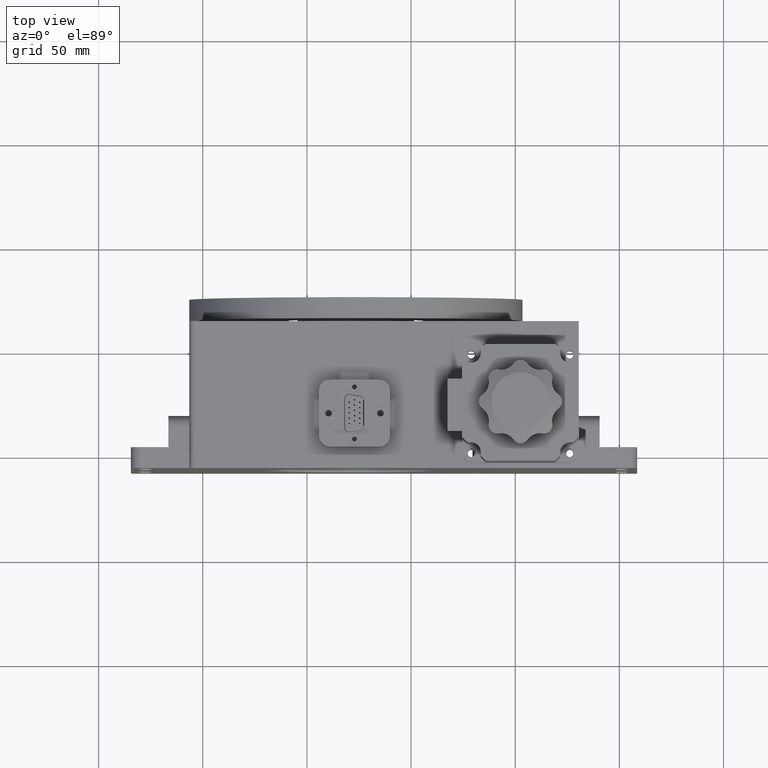
[diagram: clean part render]
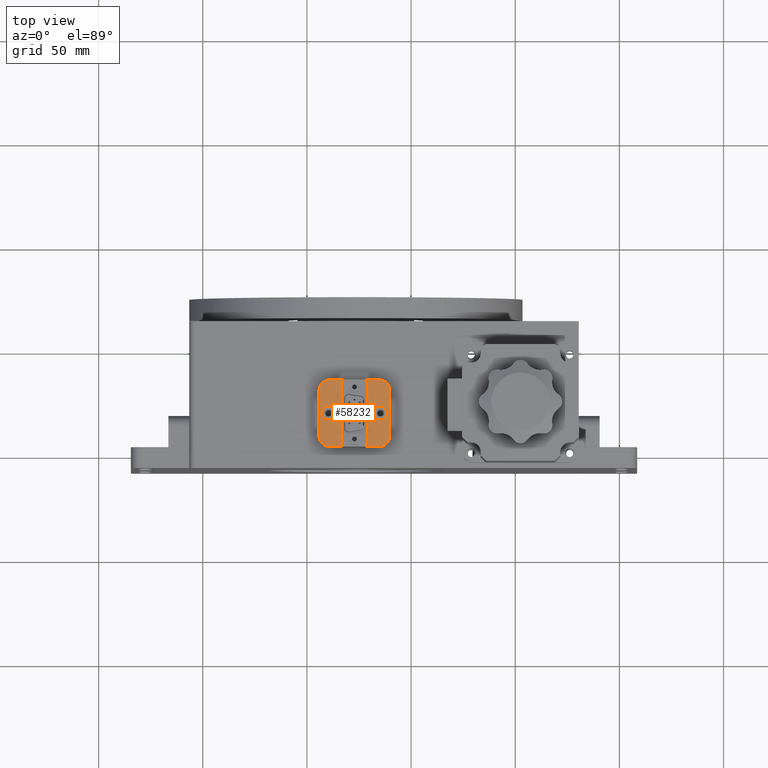
[diagram: same view with one face highlighted and labeled with its STEP entity id]
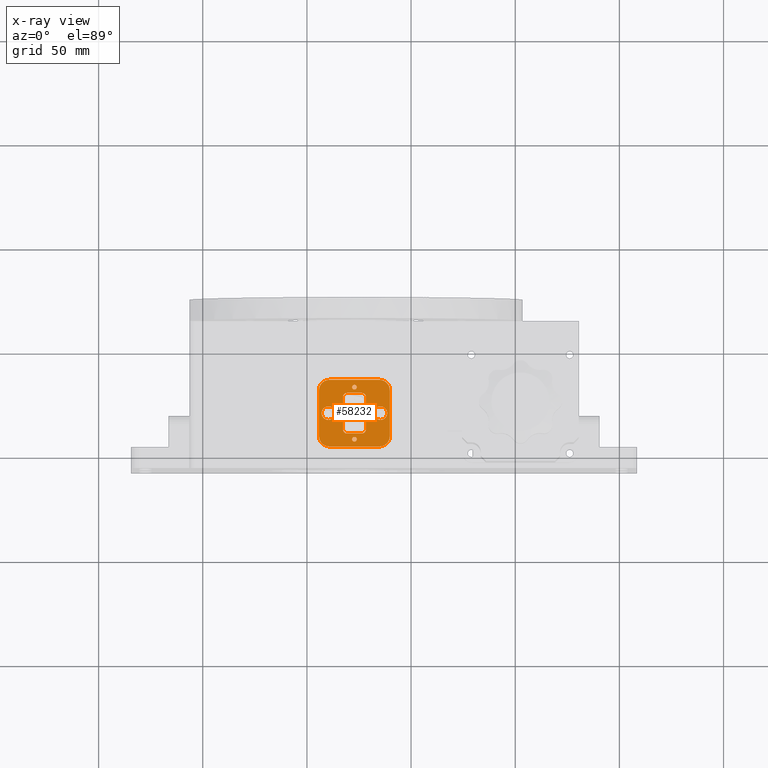
[diagram: x-ray of the same camera — body ghosted, the highlighted face saturated]
A machine part, top view. The second image highlights one B-rep face of the part: STEP entity #58232.
The next image is the same camera in x-ray: the body ghosted, the highlighted face saturated — about 0% of this face is hidden behind the body in this view.
In plain terms, the highlighted planar face has unit normal (0, 0, 1).
Its self-contained STEP definition (entity closure, byte-faithful):
#401 = EDGE_CURVE ( 'NONE', #41298, #81257, #11956, .T. ) ;
#722 = CARTESIAN_POINT ( 'NONE',  ( 176.2999999999999500, 26.24999999999998200, 95.00000000000000000 ) ) ;
#1370 = AXIS2_PLACEMENT_3D ( 'NONE', #97990, #48661, #106285 ) ;
#1407 = DIRECTION ( 'NONE',  ( 1.110223024625156300E-016, -1.000000000000000000, 1.979074067922857200E-017 ) ) ;
#2116 = AXIS2_PLACEMENT_3D ( 'NONE', #39461, #97050, #47736 ) ;
#2663 = CARTESIAN_POINT ( 'NONE',  ( 169.2999999999999500, 10.74999999999998000, 95.00000000000000000 ) ) ;
#2784 = DIRECTION ( 'NONE',  ( -1.163031447553721600E-017, -1.979074067922857800E-017, -1.000000000000000000 ) ) ;
#3432 = CIRCLE ( 'NONE', #6556, 5.000000000000004400 ) ;
#4756 = DIRECTION ( 'NONE',  ( 1.000000000000000000, 0.0000000000000000000, 0.0000000000000000000 ) ) ;
#5069 = DIRECTION ( 'NONE',  ( 1.000000000000000000, 0.0000000000000000000, 0.0000000000000000000 ) ) ;
#5075 = ORIENTED_EDGE ( 'NONE', *, *, #48262, .F. ) ;
#5930 = VERTEX_POINT ( 'NONE', #68591 ) ;
#6556 = AXIS2_PLACEMENT_3D ( 'NONE', #44109, #101680, #52350 ) ;
#6705 = CIRCLE ( 'NONE', #65721, 3.250000000000002700 ) ;
#7491 = CARTESIAN_POINT ( 'NONE',  ( 176.2999999999999500, 28.24999999999998200, 95.00000000000000000 ) ) ;
#8966 = DIRECTION ( 'NONE',  ( 1.000000000000000000, 0.0000000000000000000, 0.0000000000000000000 ) ) ;
#9271 = ORIENTED_EDGE ( 'NONE', *, *, #10303, .T. ) ;
#9697 = EDGE_LOOP ( 'NONE', ( #13674, #14201 ) ) ;
#9873 = CARTESIAN_POINT ( 'NONE',  ( 189.7999999999999500, 29.49999999999998600, 95.00000000000000000 ) ) ;
#10303 = EDGE_CURVE ( 'NONE', #22187, #84793, #23425, .T. ) ;
#10437 = CARTESIAN_POINT ( 'NONE',  ( 155.7999999999999300, 7.499999999999980500, 95.00000000000000000 ) ) ;
#10888 = DIRECTION ( 'NONE',  ( -1.000000000000000000, 0.0000000000000000000, 0.0000000000000000000 ) ) ;
#11956 = CIRCLE ( 'NONE', #99701, 3.250000000000002700 ) ;
#13120 = EDGE_CURVE ( 'NONE', #42320, #47462, #57618, .T. ) ;
#13623 = DIRECTION ( 'NONE',  ( 1.163031447553721600E-017, 1.979074067922857800E-017, 1.000000000000000000 ) ) ;
#13674 = ORIENTED_EDGE ( 'NONE', *, *, #84899, .F. ) ;
#14201 = ORIENTED_EDGE ( 'NONE', *, *, #105463, .F. ) ;
#14415 = AXIS2_PLACEMENT_3D ( 'NONE', #30085, #87753, #38383 ) ;
#15762 = LINE ( 'NONE', #29673, #95625 ) ;
#16251 = VERTEX_POINT ( 'NONE', #102728 ) ;
#16459 = ORIENTED_EDGE ( 'NONE', *, *, #13120, .F. ) ;
#19341 = EDGE_CURVE ( 'NONE', #81257, #41298, #80140, .T. ) ;
#21327 = LINE ( 'NONE', #7491, #62565 ) ;
#21628 = CARTESIAN_POINT ( 'NONE',  ( 185.2999999999999500, 18.49999999999998200, 95.00000000000000000 ) ) ;
#21630 = CARTESIAN_POINT ( 'NONE',  ( 169.2999999999999500, 28.24999999999998200, 95.00000000000000000 ) ) ;
#21930 = CARTESIAN_POINT ( 'NONE',  ( 160.2999999999999500, 18.49999999999998200, 95.00000000000000000 ) ) ;
#22187 = VERTEX_POINT ( 'NONE', #74598 ) ;
#22322 = CARTESIAN_POINT ( 'NONE',  ( 172.7999999999999500, 5.999999999999977800, 95.00000000000000000 ) ) ;
#22695 = CIRCLE ( 'NONE', #75023, 2.000000000000001800 ) ;
#23274 = AXIS2_PLACEMENT_3D ( 'NONE', #103397, #54041, #4756 ) ;
#23425 = LINE ( 'NONE', #95240, #64625 ) ;
#23489 = EDGE_CURVE ( 'NONE', #56537, #67638, #71592, .T. ) ;
#23936 = VERTEX_POINT ( 'NONE', #61471 ) ;
#24463 = DIRECTION ( 'NONE',  ( 1.000000000000000000, -1.279123011582182100E-066, -1.163031447553721700E-017 ) ) ;
#24992 = CARTESIAN_POINT ( 'NONE',  ( 178.2999999999999500, 26.24999999999998200, 95.00000000000000000 ) ) ;
#25199 = CIRCLE ( 'NONE', #48083, 5.000000000000004400 ) ;
#25575 = CARTESIAN_POINT ( 'NONE',  ( 185.2999999999999500, 18.49999999999998200, 95.00000000000000000 ) ) ;
#26602 = VECTOR ( 'NONE', #101057, 1000.000000000000000 ) ;
#27470 = VECTOR ( 'NONE', #1407, 1000.000000000000000 ) ;
#27724 = ORIENTED_EDGE ( 'NONE', *, *, #105138, .F. ) ;
#28409 = VERTEX_POINT ( 'NONE', #94541 ) ;
#29388 = FACE_BOUND ( 'NONE', #29890, .T. ) ;
#29673 = CARTESIAN_POINT ( 'NONE',  ( 189.7999999999999500, 29.49999999999998600, 95.00000000000000000 ) ) ;
#29890 = EDGE_LOOP ( 'NONE', ( #27724, #45446 ) ) ;
#29897 = DIRECTION ( 'NONE',  ( 1.000000000000000000, 0.0000000000000000000, 0.0000000000000000000 ) ) ;
#30085 = CARTESIAN_POINT ( 'NONE',  ( 184.7999999999999500, 29.49999999999998600, 95.00000000000000000 ) ) ;
#30199 = DIRECTION ( 'NONE',  ( 1.000000000000000000, 0.0000000000000000000, 0.0000000000000000000 ) ) ;
#30589 = DIRECTION ( 'NONE',  ( 1.000000000000000000, 0.0000000000000000000, 0.0000000000000000000 ) ) ;
#30597 = CIRCLE ( 'NONE', #43795, 1.130300000000000700 ) ;
#31428 = CARTESIAN_POINT ( 'NONE',  ( 169.2999999999999500, 8.749999999999980500, 95.00000000000000000 ) ) ;
#32108 = AXIS2_PLACEMENT_3D ( 'NONE', #722, #58298, #8966 ) ;
#32227 = CARTESIAN_POINT ( 'NONE',  ( 184.7999999999999500, 34.49999999999998600, 95.00000000000000000 ) ) ;
#32808 = ORIENTED_EDGE ( 'NONE', *, *, #89044, .T. ) ;
#32856 = LINE ( 'NONE', #68121, #93396 ) ;
#33129 = EDGE_LOOP ( 'NONE', ( #67091, #75498, #54999, #5075, #71817, #101205, #91543, #71435 ) ) ;
#33472 = CARTESIAN_POINT ( 'NONE',  ( 178.2999999999999500, 26.24999999999998200, 95.00000000000000000 ) ) ;
#33722 = CIRCLE ( 'NONE', #1370, 2.000000000000001800 ) ;
#33848 = DIRECTION ( 'NONE',  ( 1.000000000000000000, 0.0000000000000000000, 0.0000000000000000000 ) ) ;
#35179 = CARTESIAN_POINT ( 'NONE',  ( 155.7999999999999300, 29.49999999999998600, 95.00000000000000000 ) ) ;
#35326 = CARTESIAN_POINT ( 'NONE',  ( 172.7999999999999500, 30.99999999999998600, 95.00000000000000000 ) ) ;
#35340 = DIRECTION ( 'NONE',  ( -1.000000000000000000, 1.279123011582182100E-066, 1.163031447553721700E-017 ) ) ;
#36014 = EDGE_CURVE ( 'NONE', #99036, #23936, #32856, .T. ) ;
#38383 = DIRECTION ( 'NONE',  ( 1.000000000000000000, -1.279123011582182100E-066, -1.163031447553721700E-017 ) ) ;
#39368 = EDGE_CURVE ( 'NONE', #16251, #28409, #93788, .T. ) ;
#39461 = CARTESIAN_POINT ( 'NONE',  ( 176.2999999999999500, 10.74999999999998000, 95.00000000000000000 ) ) ;
#41134 = CARTESIAN_POINT ( 'NONE',  ( 160.7999999999999500, 29.49999999999998600, 95.00000000000000000 ) ) ;
#41298 = VERTEX_POINT ( 'NONE', #100392 ) ;
#42320 = VERTEX_POINT ( 'NONE', #47551 ) ;
#43038 = AXIS2_PLACEMENT_3D ( 'NONE', #22322, #79904, #30589 ) ;
#43629 = DIRECTION ( 'NONE',  ( 1.000000000000000000, 0.0000000000000000000, 0.0000000000000000000 ) ) ;
#43795 = AXIS2_PLACEMENT_3D ( 'NONE', #94607, #45288, #102860 ) ;
#44109 = CARTESIAN_POINT ( 'NONE',  ( 160.7999999999999500, 7.499999999999980500, 95.00000000000000000 ) ) ;
#44633 = CARTESIAN_POINT ( 'NONE',  ( 176.2999999999999500, 8.749999999999980500, 95.00000000000000000 ) ) ;
#45288 = DIRECTION ( 'NONE',  ( 1.163031447553721600E-017, 1.979074067922857800E-017, 1.000000000000000000 ) ) ;
#45446 = ORIENTED_EDGE ( 'NONE', *, *, #23489, .F. ) ;
#45902 = VERTEX_POINT ( 'NONE', #31428 ) ;
#46182 = FACE_BOUND ( 'NONE', #97632, .T. ) ;
#46491 = CARTESIAN_POINT ( 'NONE',  ( 172.7999999999999500, 30.99999999999998600, 95.00000000000000000 ) ) ;
#46881 = VERTEX_POINT ( 'NONE', #66790 ) ;
#47462 = VERTEX_POINT ( 'NONE', #100230 ) ;
#47551 = CARTESIAN_POINT ( 'NONE',  ( 182.0499999999999500, 18.49999999999998200, 95.00000000000000000 ) ) ;
#47736 = DIRECTION ( 'NONE',  ( 1.000000000000000000, 0.0000000000000000000, 0.0000000000000000000 ) ) ;
#48083 = AXIS2_PLACEMENT_3D ( 'NONE', #52057, #2784, #60362 ) ;
#48262 = EDGE_CURVE ( 'NONE', #64004, #16251, #75564, .T. ) ;
#48531 = VERTEX_POINT ( 'NONE', #32227 ) ;
#48661 = DIRECTION ( 'NONE',  ( -1.163031447553721600E-017, -1.979074067922857800E-017, -1.000000000000000000 ) ) ;
#48753 = FACE_BOUND ( 'NONE', #66047, .T. ) ;
#49365 = EDGE_CURVE ( 'NONE', #75203, #62792, #58895, .T. ) ;
#49372 = DIRECTION ( 'NONE',  ( 1.000000000000000000, 0.0000000000000000000, 0.0000000000000000000 ) ) ;
#50600 = ORIENTED_EDGE ( 'NONE', *, *, #100385, .T. ) ;
#51937 = LINE ( 'NONE', #33472, #27470 ) ;
#52057 = CARTESIAN_POINT ( 'NONE',  ( 184.7999999999999500, 29.49999999999998600, 95.00000000000000000 ) ) ;
#52350 = DIRECTION ( 'NONE',  ( -1.000000000000000000, 0.0000000000000000000, 0.0000000000000000000 ) ) ;
#53567 = EDGE_CURVE ( 'NONE', #70672, #5930, #15762, .T. ) ;
#54041 = DIRECTION ( 'NONE',  ( 1.163031447553721600E-017, 1.979074067922857800E-017, 1.000000000000000000 ) ) ;
#54363 = DIRECTION ( 'NONE',  ( -1.163031447553721600E-017, -1.979074067922857800E-017, -1.000000000000000000 ) ) ;
#54373 = CIRCLE ( 'NONE', #43038, 1.130300000000000700 ) ;
#54509 = EDGE_CURVE ( 'NONE', #62792, #45902, #87858, .T. ) ;
#54734 = DIRECTION ( 'NONE',  ( 1.000000000000000000, 0.0000000000000000000, 0.0000000000000000000 ) ) ;
#54999 = ORIENTED_EDGE ( 'NONE', *, *, #39368, .F. ) ;
#55160 = CARTESIAN_POINT ( 'NONE',  ( 184.7999999999999500, 2.499999999999977800, 95.00000000000000000 ) ) ;
#56537 = VERTEX_POINT ( 'NONE', #66505 ) ;
#57618 = CIRCLE ( 'NONE', #79988, 3.250000000000002700 ) ;
#58232 = ADVANCED_FACE ( 'NONE', ( #90020, #29388, #48753, #68069, #92582, #46182 ), #70784, .T. ) ;
#58298 = DIRECTION ( 'NONE',  ( -1.163031447553721600E-017, -1.979074067922857800E-017, -1.000000000000000000 ) ) ;
#58895 = CIRCLE ( 'NONE', #2116, 2.000000000000001800 ) ;
#59363 = ORIENTED_EDGE ( 'NONE', *, *, #19341, .F. ) ;
#60019 = CIRCLE ( 'NONE', #32108, 2.000000000000001800 ) ;
#60234 = DIRECTION ( 'NONE',  ( -1.163031447553721600E-017, -1.979074067922857800E-017, -1.000000000000000000 ) ) ;
#60335 = CIRCLE ( 'NONE', #81019, 5.000000000000004400 ) ;
#60362 = DIRECTION ( 'NONE',  ( 1.000000000000000000, 0.0000000000000000000, 0.0000000000000000000 ) ) ;
#60904 = EDGE_CURVE ( 'NONE', #47462, #42320, #6705, .T. ) ;
#61471 = CARTESIAN_POINT ( 'NONE',  ( 160.7999999999999500, 2.499999999999977800, 95.00000000000000000 ) ) ;
#61512 = CARTESIAN_POINT ( 'NONE',  ( 176.2999999999999500, 28.24999999999998200, 95.00000000000000000 ) ) ;
#62565 = VECTOR ( 'NONE', #24463, 1000.000000000000000 ) ;
#62792 = VERTEX_POINT ( 'NONE', #44633 ) ;
#64004 = VERTEX_POINT ( 'NONE', #10437 ) ;
#64625 = VECTOR ( 'NONE', #103173, 1000.000000000000000 ) ;
#65721 = AXIS2_PLACEMENT_3D ( 'NONE', #25575, #83205, #33848 ) ;
#65930 = VECTOR ( 'NONE', #79468, 1000.000000000000000 ) ;
#66047 = EDGE_LOOP ( 'NONE', ( #69914, #59363 ) ) ;
#66505 = CARTESIAN_POINT ( 'NONE',  ( 171.6696999999999500, 30.99999999999998600, 95.00000000000000000 ) ) ;
#66756 = CARTESIAN_POINT ( 'NONE',  ( 173.9302999999999600, 30.99999999999998600, 95.00000000000000000 ) ) ;
#66790 = CARTESIAN_POINT ( 'NONE',  ( 173.9302999999999600, 5.999999999999977800, 95.00000000000000000 ) ) ;
#67091 = ORIENTED_EDGE ( 'NONE', *, *, #83572, .F. ) ;
#67375 = LINE ( 'NONE', #78219, #75116 ) ;
#67638 = VERTEX_POINT ( 'NONE', #66756 ) ;
#68069 = FACE_BOUND ( 'NONE', #89075, .T. ) ;
#68121 = CARTESIAN_POINT ( 'NONE',  ( 184.7999999999999500, 2.499999999999977800, 95.00000000000000000 ) ) ;
#68591 = CARTESIAN_POINT ( 'NONE',  ( 189.7999999999999500, 7.499999999999980500, 95.00000000000000000 ) ) ;
#69469 = CARTESIAN_POINT ( 'NONE',  ( 178.2999999999999500, 10.74999999999998000, 95.00000000000000000 ) ) ;
#69857 = CARTESIAN_POINT ( 'NONE',  ( 167.2999999999999500, 26.24999999999998200, 95.00000000000000000 ) ) ;
#69914 = ORIENTED_EDGE ( 'NONE', *, *, #401, .F. ) ;
#70672 = VERTEX_POINT ( 'NONE', #9873 ) ;
#70784 = PLANE ( 'NONE',  #14415 ) ;
#70946 = VERTEX_POINT ( 'NONE', #24992 ) ;
#71186 = CARTESIAN_POINT ( 'NONE',  ( 176.2999999999999500, 8.749999999999980500, 95.00000000000000000 ) ) ;
#71435 = ORIENTED_EDGE ( 'NONE', *, *, #53567, .F. ) ;
#71592 = CIRCLE ( 'NONE', #73852, 1.130300000000000700 ) ;
#71817 = ORIENTED_EDGE ( 'NONE', *, *, #105844, .F. ) ;
#72167 = CARTESIAN_POINT ( 'NONE',  ( 157.0499999999999300, 18.49999999999998200, 95.00000000000000000 ) ) ;
#73469 = EDGE_CURVE ( 'NONE', #106873, #70946, #60019, .T. ) ;
#73852 = AXIS2_PLACEMENT_3D ( 'NONE', #35326, #92951, #43629 ) ;
#74598 = CARTESIAN_POINT ( 'NONE',  ( 167.2999999999999500, 10.74999999999998000, 95.00000000000000000 ) ) ;
#75023 = AXIS2_PLACEMENT_3D ( 'NONE', #2663, #60234, #10888 ) ;
#75116 = VECTOR ( 'NONE', #103048, 1000.000000000000000 ) ;
#75203 = VERTEX_POINT ( 'NONE', #69469 ) ;
#75498 = ORIENTED_EDGE ( 'NONE', *, *, #95762, .F. ) ;
#75564 = LINE ( 'NONE', #35179, #26602 ) ;
#77305 = ORIENTED_EDGE ( 'NONE', *, *, #102776, .T. ) ;
#77950 = ORIENTED_EDGE ( 'NONE', *, *, #54509, .T. ) ;
#78219 = CARTESIAN_POINT ( 'NONE',  ( 184.7999999999999500, 34.49999999999998600, 95.00000000000000000 ) ) ;
#79229 = DIRECTION ( 'NONE',  ( 1.163031447553721600E-017, 1.979074067922857800E-017, 1.000000000000000000 ) ) ;
#79468 = DIRECTION ( 'NONE',  ( -1.000000000000000000, 1.279123011582182100E-066, 1.163031447553721700E-017 ) ) ;
#79904 = DIRECTION ( 'NONE',  ( 1.163031447553721600E-017, 1.979074067922857800E-017, 1.000000000000000000 ) ) ;
#79988 = AXIS2_PLACEMENT_3D ( 'NONE', #21628, #79229, #29897 ) ;
#80140 = CIRCLE ( 'NONE', #23274, 3.250000000000002700 ) ;
#81019 = AXIS2_PLACEMENT_3D ( 'NONE', #103729, #54363, #5069 ) ;
#81257 = VERTEX_POINT ( 'NONE', #72167 ) ;
#82076 = AXIS2_PLACEMENT_3D ( 'NONE', #41134, #98738, #49372 ) ;
#82304 = CIRCLE ( 'NONE', #92086, 1.130300000000000700 ) ;
#82889 = ORIENTED_EDGE ( 'NONE', *, *, #73469, .T. ) ;
#83205 = DIRECTION ( 'NONE',  ( 1.163031447553721600E-017, 1.979074067922857800E-017, 1.000000000000000000 ) ) ;
#83426 = EDGE_CURVE ( 'NONE', #101661, #106873, #21327, .T. ) ;
#83572 = EDGE_CURVE ( 'NONE', #48531, #70672, #25199, .T. ) ;
#84793 = VERTEX_POINT ( 'NONE', #69857 ) ;
#84899 = EDGE_CURVE ( 'NONE', #46881, #89374, #54373, .T. ) ;
#86372 = ORIENTED_EDGE ( 'NONE', *, *, #83426, .T. ) ;
#87351 = DIRECTION ( 'NONE',  ( 1.110223024625156300E-016, -1.000000000000000000, 1.979074067922857200E-017 ) ) ;
#87753 = DIRECTION ( 'NONE',  ( 1.163031447553721700E-017, 1.979074067922857800E-017, 1.000000000000000000 ) ) ;
#87858 = LINE ( 'NONE', #71186, #65930 ) ;
#89044 = EDGE_CURVE ( 'NONE', #45902, #22187, #22695, .T. ) ;
#89075 = EDGE_LOOP ( 'NONE', ( #104859, #16459 ) ) ;
#89374 = VERTEX_POINT ( 'NONE', #99425 ) ;
#90020 = FACE_BOUND ( 'NONE', #9697, .T. ) ;
#91543 = ORIENTED_EDGE ( 'NONE', *, *, #105117, .F. ) ;
#92086 = AXIS2_PLACEMENT_3D ( 'NONE', #46491, #104076, #54734 ) ;
#92582 = FACE_OUTER_BOUND ( 'NONE', #33129, .T. ) ;
#92951 = DIRECTION ( 'NONE',  ( 1.163031447553721600E-017, 1.979074067922857800E-017, 1.000000000000000000 ) ) ;
#93396 = VECTOR ( 'NONE', #35340, 1000.000000000000000 ) ;
#93788 = CIRCLE ( 'NONE', #82076, 5.000000000000004400 ) ;
#94541 = CARTESIAN_POINT ( 'NONE',  ( 160.7999999999999500, 34.49999999999998600, 95.00000000000000000 ) ) ;
#94607 = CARTESIAN_POINT ( 'NONE',  ( 172.7999999999999500, 5.999999999999977800, 95.00000000000000000 ) ) ;
#95240 = CARTESIAN_POINT ( 'NONE',  ( 167.2999999999999500, 26.24999999999998200, 95.00000000000000000 ) ) ;
#95625 = VECTOR ( 'NONE', #87351, 1000.000000000000000 ) ;
#95762 = EDGE_CURVE ( 'NONE', #28409, #48531, #67375, .T. ) ;
#97050 = DIRECTION ( 'NONE',  ( -1.163031447553721600E-017, -1.979074067922857800E-017, -1.000000000000000000 ) ) ;
#97632 = EDGE_LOOP ( 'NONE', ( #9271, #50600, #86372, #82889, #77305, #106052, #77950, #32808 ) ) ;
#97990 = CARTESIAN_POINT ( 'NONE',  ( 169.2999999999999500, 26.24999999999998200, 95.00000000000000000 ) ) ;
#98738 = DIRECTION ( 'NONE',  ( -1.163031447553721600E-017, -1.979074067922857800E-017, -1.000000000000000000 ) ) ;
#99036 = VERTEX_POINT ( 'NONE', #55160 ) ;
#99425 = CARTESIAN_POINT ( 'NONE',  ( 171.6696999999999500, 5.999999999999977800, 95.00000000000000000 ) ) ;
#99701 = AXIS2_PLACEMENT_3D ( 'NONE', #21930, #13623, #30199 ) ;
#100230 = CARTESIAN_POINT ( 'NONE',  ( 188.5499999999999500, 18.49999999999998200, 95.00000000000000000 ) ) ;
#100385 = EDGE_CURVE ( 'NONE', #84793, #101661, #33722, .T. ) ;
#100392 = CARTESIAN_POINT ( 'NONE',  ( 163.5499999999999500, 18.49999999999998200, 95.00000000000000000 ) ) ;
#101057 = DIRECTION ( 'NONE',  ( -1.110223024625156300E-016, 1.000000000000000000, -1.979074067922857200E-017 ) ) ;
#101205 = ORIENTED_EDGE ( 'NONE', *, *, #36014, .F. ) ;
#101661 = VERTEX_POINT ( 'NONE', #21630 ) ;
#101680 = DIRECTION ( 'NONE',  ( -1.163031447553721600E-017, -1.979074067922857800E-017, -1.000000000000000000 ) ) ;
#102728 = CARTESIAN_POINT ( 'NONE',  ( 155.7999999999999300, 29.49999999999998600, 95.00000000000000000 ) ) ;
#102776 = EDGE_CURVE ( 'NONE', #70946, #75203, #51937, .T. ) ;
#102860 = DIRECTION ( 'NONE',  ( 1.000000000000000000, 0.0000000000000000000, 0.0000000000000000000 ) ) ;
#103048 = DIRECTION ( 'NONE',  ( 1.000000000000000000, -1.279123011582182100E-066, -1.163031447553721700E-017 ) ) ;
#103173 = DIRECTION ( 'NONE',  ( -1.110223024625156300E-016, 1.000000000000000000, -1.979074067922857200E-017 ) ) ;
#103397 = CARTESIAN_POINT ( 'NONE',  ( 160.2999999999999500, 18.49999999999998200, 95.00000000000000000 ) ) ;
#103729 = CARTESIAN_POINT ( 'NONE',  ( 184.7999999999999500, 7.499999999999980500, 95.00000000000000000 ) ) ;
#104076 = DIRECTION ( 'NONE',  ( 1.163031447553721600E-017, 1.979074067922857800E-017, 1.000000000000000000 ) ) ;
#104859 = ORIENTED_EDGE ( 'NONE', *, *, #60904, .F. ) ;
#105117 = EDGE_CURVE ( 'NONE', #5930, #99036, #60335, .T. ) ;
#105138 = EDGE_CURVE ( 'NONE', #67638, #56537, #82304, .T. ) ;
#105463 = EDGE_CURVE ( 'NONE', #89374, #46881, #30597, .T. ) ;
#105844 = EDGE_CURVE ( 'NONE', #23936, #64004, #3432, .T. ) ;
#106052 = ORIENTED_EDGE ( 'NONE', *, *, #49365, .T. ) ;
#106285 = DIRECTION ( 'NONE',  ( -1.000000000000000000, 0.0000000000000000000, 0.0000000000000000000 ) ) ;
#106873 = VERTEX_POINT ( 'NONE', #61512 ) ;